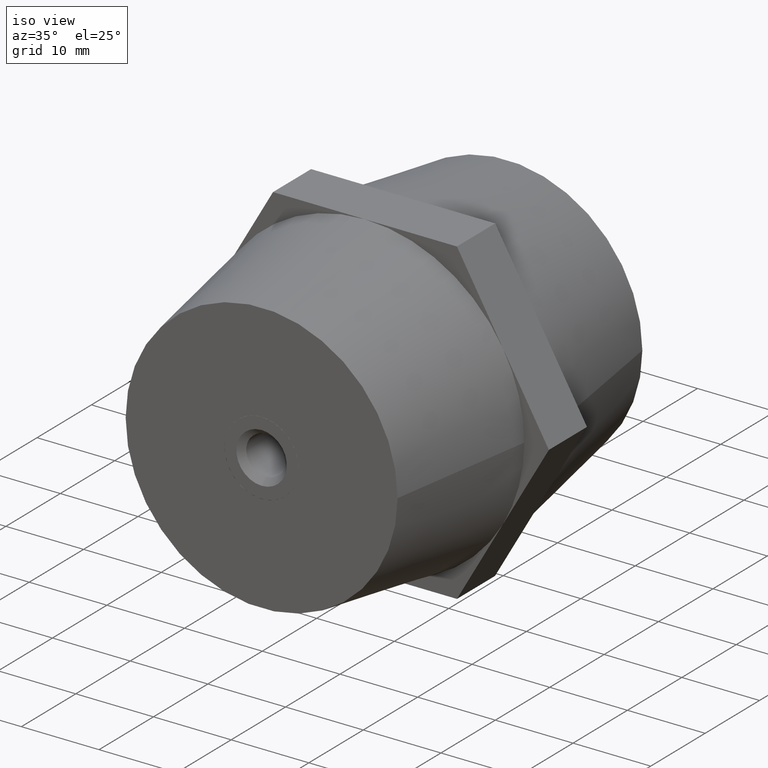
[diagram: clean part render]
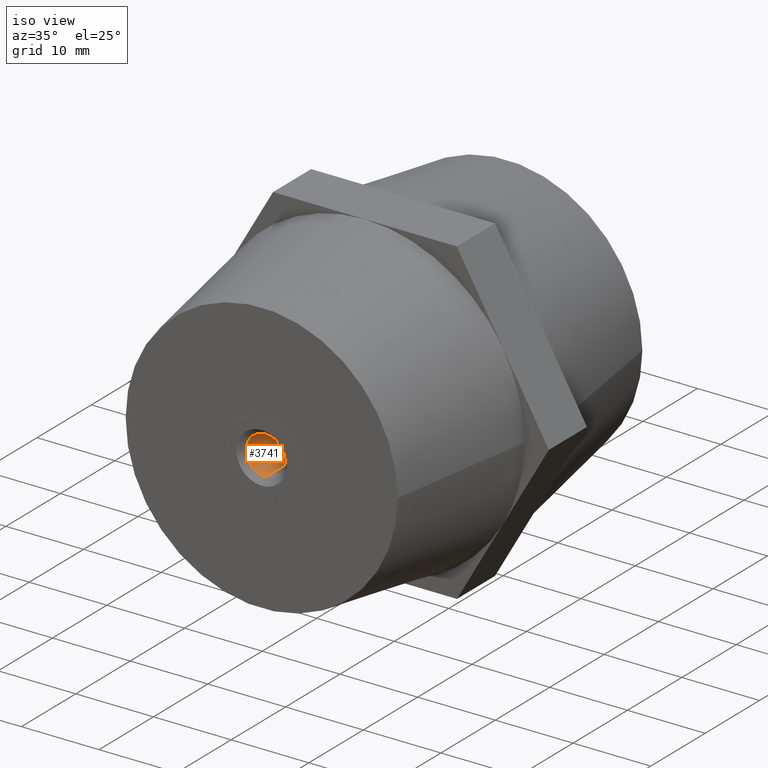
[diagram: same view with one face highlighted and labeled with its STEP entity id]
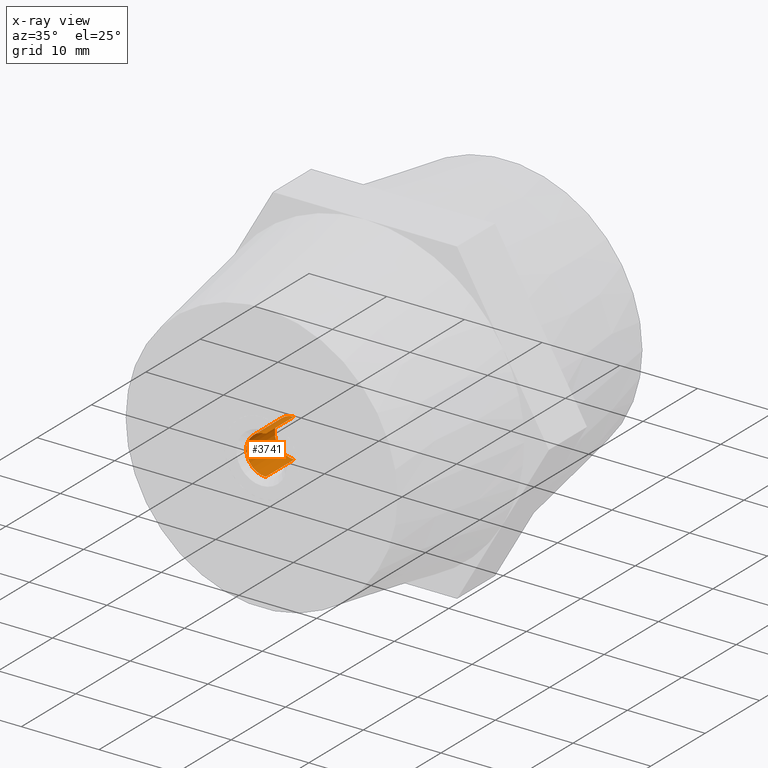
[diagram: x-ray of the same camera — body ghosted, the highlighted face saturated]
A machine part, iso view. The second image highlights one B-rep face of the part: STEP entity #3741.
The next image is the same camera in x-ray: the body ghosted, the highlighted face saturated — about 0% of this face is hidden behind the body in this view.
In plain terms, the highlighted cylindrical surface (edge-blend (fillet) strip) has radius 2.5 mm, axis along (0, -1, 0).
Its self-contained STEP definition (entity closure, byte-faithful):
#379 = ORIENTED_EDGE ( 'NONE', *, *, #1873, .T. ) ;
#421 = CARTESIAN_POINT ( 'NONE',  ( 0.0000000000000000000, 7.250000000000000000, 2.500000000000000000 ) ) ;
#691 = CARTESIAN_POINT ( 'NONE',  ( 0.0000000000000000000, 7.250000000000000000, 0.0000000000000000000 ) ) ;
#694 = ORIENTED_EDGE ( 'NONE', *, *, #3559, .F. ) ;
#887 = DIRECTION ( 'NONE',  ( 0.0000000000000000000, 0.0000000000000000000, 1.000000000000000000 ) ) ;
#1118 = CARTESIAN_POINT ( 'NONE',  ( 0.0000000000000000000, 2.000000000000000000, 0.0000000000000000000 ) ) ;
#1139 = DIRECTION ( 'NONE',  ( 0.0000000000000000000, 0.0000000000000000000, 1.000000000000000000 ) ) ;
#1427 = AXIS2_PLACEMENT_3D ( 'NONE', #691, #2170, #3396 ) ;
#1495 = CIRCLE ( 'NONE', #2612, 2.500000000000000000 ) ;
#1536 = CIRCLE ( 'NONE', #1427, 2.500000000000000000 ) ;
#1551 = CARTESIAN_POINT ( 'NONE',  ( 0.0000000000000000000, 2.000000000000000000, 2.500000000000000000 ) ) ;
#1602 = VECTOR ( 'NONE', #2374, 1000.000000000000000 ) ;
#1745 = CARTESIAN_POINT ( 'NONE',  ( 3.061616997868383100E-016, 7.250000000000000000, -2.500000000000000000 ) ) ;
#1760 = CARTESIAN_POINT ( 'NONE',  ( 3.061616997868383100E-016, 8.000000000000000000, -2.500000000000000000 ) ) ;
#1774 = CARTESIAN_POINT ( 'NONE',  ( 0.0000000000000000000, 8.000000000000000000, 2.500000000000000000 ) ) ;
#1815 = EDGE_LOOP ( 'NONE', ( #694, #379, #3042, #3565 ) ) ;
#1832 = AXIS2_PLACEMENT_3D ( 'NONE', #3874, #2685, #887 ) ;
#1873 = EDGE_CURVE ( 'NONE', #2695, #3185, #3412, .T. ) ;
#1885 = CYLINDRICAL_SURFACE ( 'NONE', #1832, 2.500000000000000000 ) ;
#2170 = DIRECTION ( 'NONE',  ( 0.0000000000000000000, 1.000000000000000000, 0.0000000000000000000 ) ) ;
#2374 = DIRECTION ( 'NONE',  ( 0.0000000000000000000, 1.000000000000000000, 0.0000000000000000000 ) ) ;
#2378 = VERTEX_POINT ( 'NONE', #421 ) ;
#2612 = AXIS2_PLACEMENT_3D ( 'NONE', #1118, #3812, #1139 ) ;
#2613 = VECTOR ( 'NONE', #2965, 1000.000000000000000 ) ;
#2614 = FACE_OUTER_BOUND ( 'NONE', #1815, .T. ) ;
#2685 = DIRECTION ( 'NONE',  ( 0.0000000000000000000, 1.000000000000000000, 0.0000000000000000000 ) ) ;
#2695 = VERTEX_POINT ( 'NONE', #3055 ) ;
#2965 = DIRECTION ( 'NONE',  ( 0.0000000000000000000, 1.000000000000000000, 0.0000000000000000000 ) ) ;
#3042 = ORIENTED_EDGE ( 'NONE', *, *, #3332, .T. ) ;
#3055 = CARTESIAN_POINT ( 'NONE',  ( 3.061616997868383100E-016, 2.000000000000000000, -2.500000000000000000 ) ) ;
#3142 = LINE ( 'NONE', #1774, #1602 ) ;
#3185 = VERTEX_POINT ( 'NONE', #1745 ) ;
#3332 = EDGE_CURVE ( 'NONE', #3185, #2378, #1536, .T. ) ;
#3396 = DIRECTION ( 'NONE',  ( 0.0000000000000000000, 0.0000000000000000000, 1.000000000000000000 ) ) ;
#3412 = LINE ( 'NONE', #1760, #2613 ) ;
#3559 = EDGE_CURVE ( 'NONE', #2695, #3828, #1495, .T. ) ;
#3565 = ORIENTED_EDGE ( 'NONE', *, *, #3656, .F. ) ;
#3656 = EDGE_CURVE ( 'NONE', #3828, #2378, #3142, .T. ) ;
#3741 = ADVANCED_FACE ( 'NONE', ( #2614 ), #1885, .F. ) ;
#3812 = DIRECTION ( 'NONE',  ( 0.0000000000000000000, 1.000000000000000000, 0.0000000000000000000 ) ) ;
#3828 = VERTEX_POINT ( 'NONE', #1551 ) ;
#3874 = CARTESIAN_POINT ( 'NONE',  ( 0.0000000000000000000, 8.000000000000000000, 0.0000000000000000000 ) ) ;